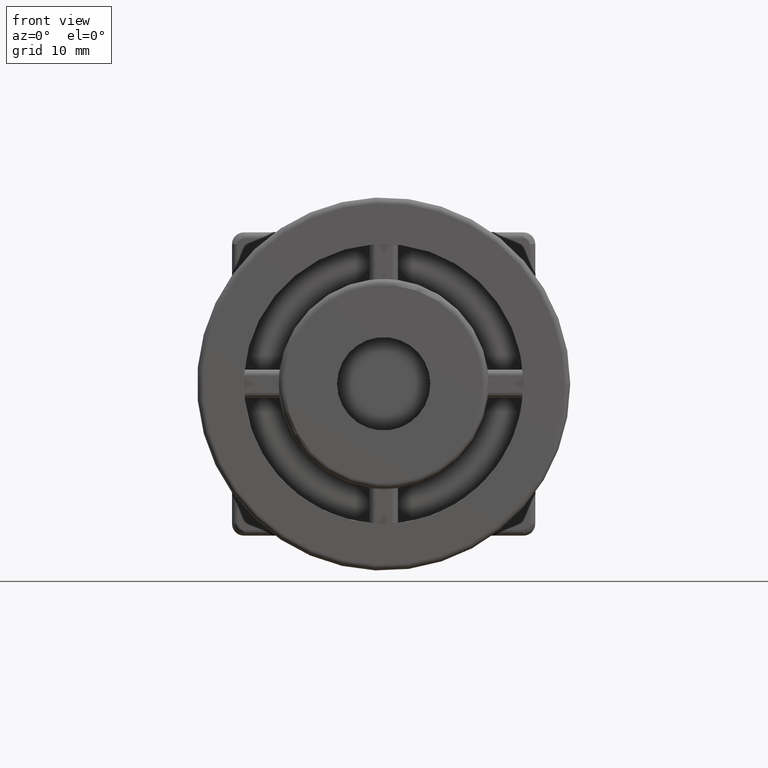
[diagram: clean part render]
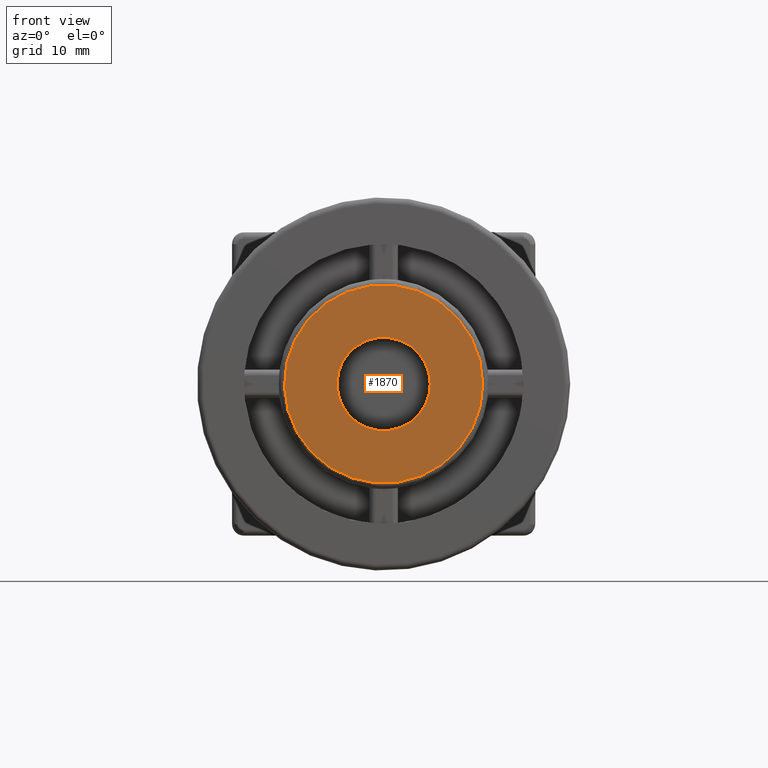
[diagram: same view with one face highlighted and labeled with its STEP entity id]
A machine part, front view. The second image highlights one B-rep face of the part: STEP entity #1870.
In plain terms, the highlighted planar face has unit normal (0, -1, 0).
Its self-contained STEP definition (entity closure, byte-faithful):
#38=FACE_BOUND('',#381,.T.);
#71=CIRCLE('',#1998,8.5);
#75=CIRCLE('',#2006,4.);
#199=PLANE('',#2005);
#259=FACE_OUTER_BOUND('',#380,.T.);
#380=EDGE_LOOP('',(#1342));
#381=EDGE_LOOP('',(#1343));
#841=VERTEX_POINT('',#3070);
#842=VERTEX_POINT('',#3079);
#1040=EDGE_CURVE('',#841,#841,#71,.T.);
#1044=EDGE_CURVE('',#842,#842,#75,.T.);
#1342=ORIENTED_EDGE('',*,*,#1040,.F.);
#1343=ORIENTED_EDGE('',*,*,#1044,.T.);
#1870=ADVANCED_FACE('',(#259,#38),#199,.T.);
#1998=AXIS2_PLACEMENT_3D('',#3071,#2296,#2297);
#2005=AXIS2_PLACEMENT_3D('',#3078,#2310,#2311);
#2006=AXIS2_PLACEMENT_3D('',#3080,#2312,#2313);
#2296=DIRECTION('center_axis',(-6.34413156928661E-17,1.,0.));
#2297=DIRECTION('ref_axis',(-1.,-6.34413156928661E-17,0.));
#2310=DIRECTION('center_axis',(6.34413156928661E-17,-1.,0.));
#2311=DIRECTION('ref_axis',(0.,0.,-1.));
#2312=DIRECTION('center_axis',(-6.34413156928661E-17,1.,0.));
#2313=DIRECTION('ref_axis',(-1.,-1.00929365875014E-16,0.));
#3070=CARTESIAN_POINT('',(8.5,0.500000000000001,-1.04094977927525E-15));
#3071=CARTESIAN_POINT('Origin',(3.17206578464331E-17,0.5,0.));
#3078=CARTESIAN_POINT('Origin',(-7.39255249150933E-16,0.5,-3.08395284618099E-16));
#3079=CARTESIAN_POINT('',(4.,0.5,-4.89858719658941E-16));
#3080=CARTESIAN_POINT('Origin',(-5.04646829375071E-17,0.5,0.));